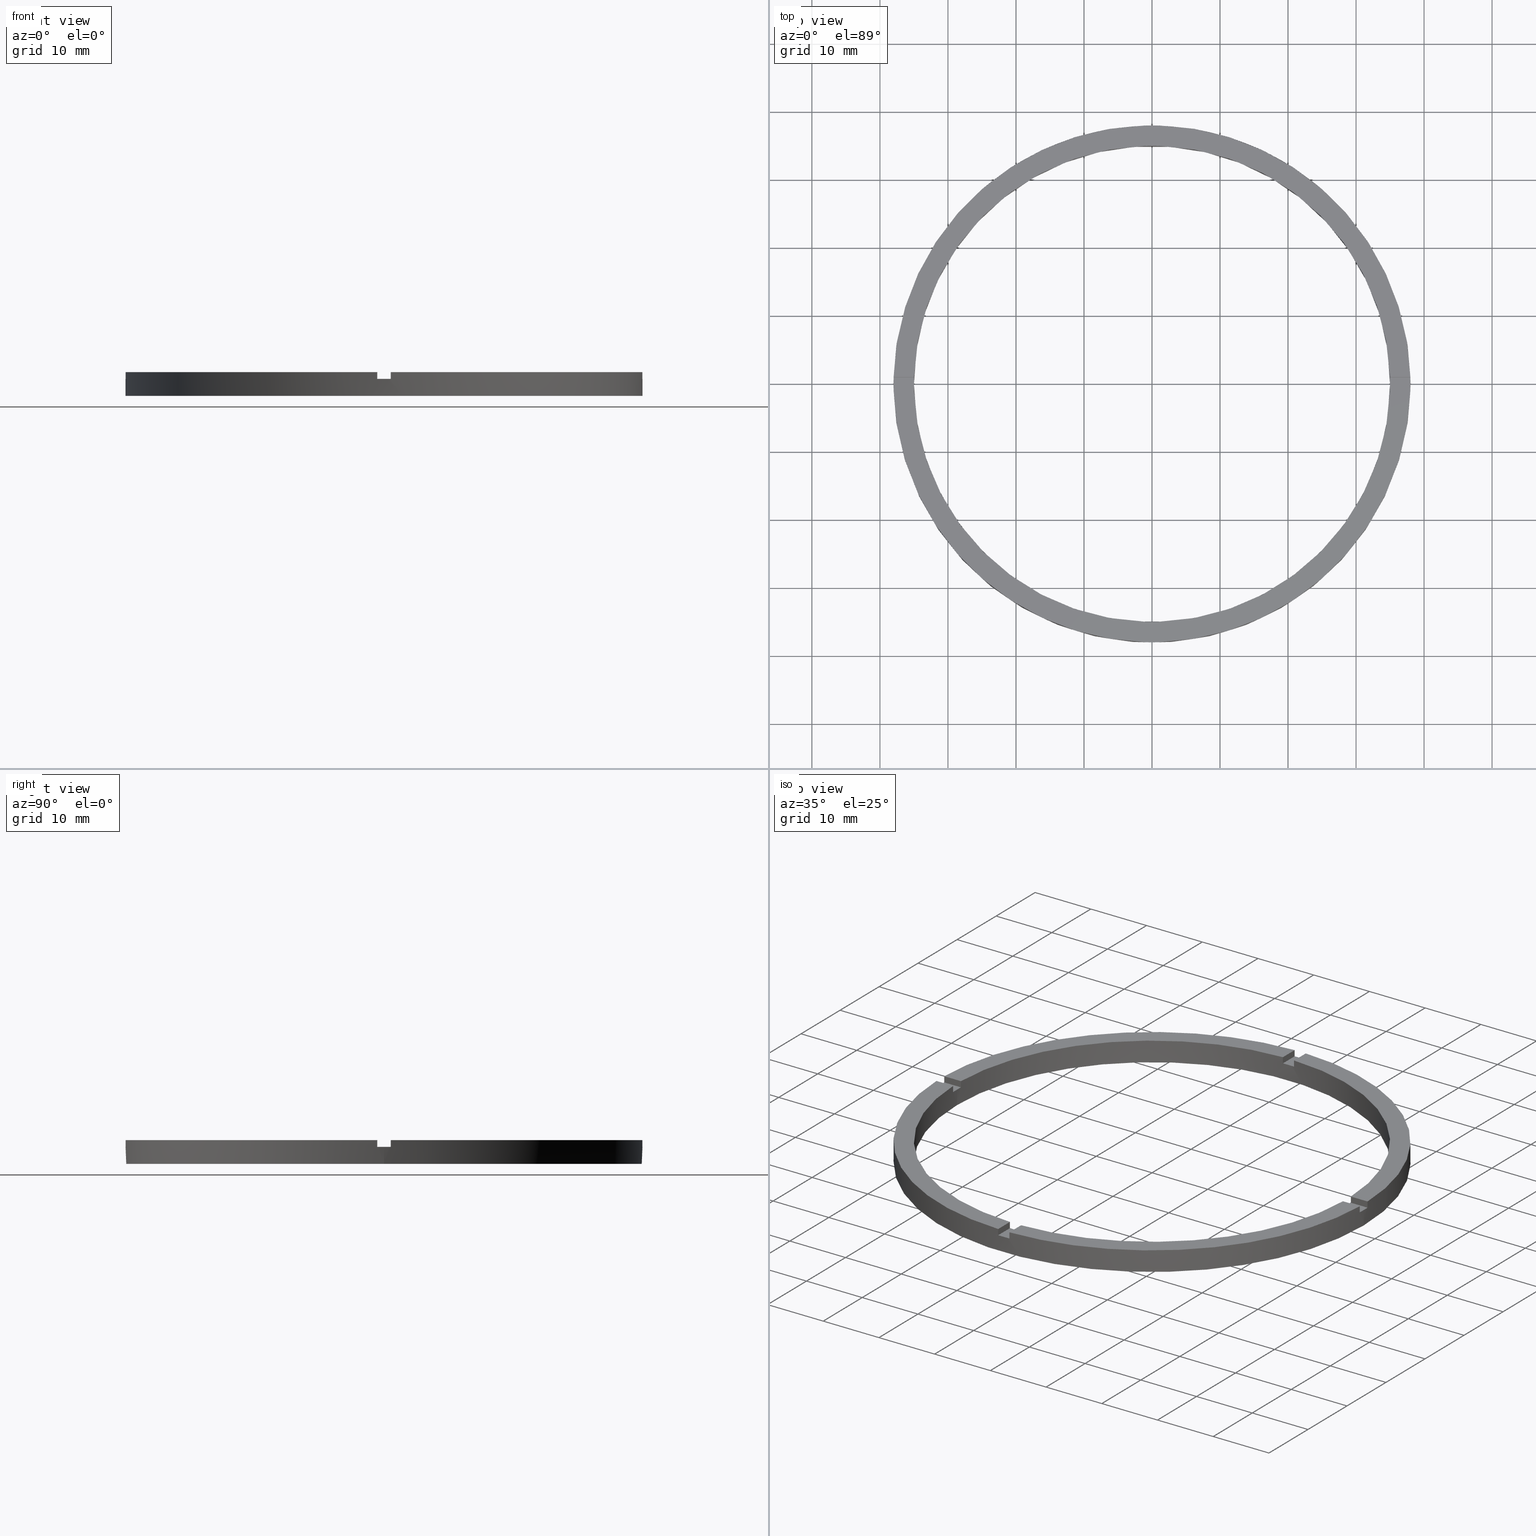
[diagram: canonical four-view strip — front | top / right | iso, engineering-drawing reading convention]
A machine part, canonical four-view strip (front | top / right | iso — engineering-drawing reading convention). The complete STEP part file that produces these views, byte-faithful:
ISO-10303-21;
HEADER;
FILE_DESCRIPTION (( 'STEP AP203' ),
    '1' );
FILE_NAME ('514156.step',
    '2024-12-26T02:42:58',
    ( 'MSI' ),
    ( '' ),
    'SwSTEP 2.0',
    'SolidWorks 2020',
    '' );
FILE_SCHEMA (( 'CONFIG_CONTROL_DESIGN' ));
ENDSEC;

DATA;
#1 = CARTESIAN_POINT ( 'NONE',  ( -35.00000000000000711, 0.000000000000000000, 3.500000000000000000 ) ) ;
#2 = EDGE_CURVE ( 'NONE', #739, #466, #202, .T. ) ;
#3 = APPROVAL ( #173, 'δָ��' ) ;
#4 = EDGE_CURVE ( 'NONE', #170, #750, #207, .T. ) ;
#5 = DIRECTION ( 'NONE',  ( 0.000000000000000000, 0.000000000000000000, 1.000000000000000000 ) ) ;
#6 = DIRECTION ( 'NONE',  ( 0.000000000000000000, -0.000000000000000000, 1.000000000000000000 ) ) ;
#7 = DIRECTION ( 'NONE',  ( -0.000000000000000000, 0.000000000000000000, 1.000000000000000000 ) ) ;
#8 = CARTESIAN_POINT ( 'NONE',  ( -28.00000000000018474, -1.000000000000025757, 3.500000000000000000 ) ) ;
#9 = DIRECTION ( 'NONE',  ( -0.000000000000000000, -0.000000000000000000, -1.000000000000000000 ) ) ;
#10 = EDGE_CURVE ( 'NONE', #500, #498, #454, .T. ) ;
#11 = EDGE_CURVE ( 'NONE', #749, #383, #189, .T. ) ;
#12 = DIRECTION ( 'NONE',  ( 1.000000000000000000, 6.505213034913025371E-17, 0.000000000000000000 ) ) ;
#13 = DIRECTION ( 'NONE',  ( 1.000000000000000000, 0.000000000000000000, 0.000000000000000000 ) ) ;
#14 = PLANE ( 'NONE',  #432 ) ;
#15 = LINE ( 'NONE', #352, #295 ) ;
#16 = ADVANCED_FACE ( 'NONE', ( #447 ), #345, .F. ) ;
#17 = CARTESIAN_POINT ( 'NONE',  ( 0.000000000000000000, 0.000000000000000000, 2.500000000000000000 ) ) ;
#18 = CARTESIAN_POINT ( 'NONE',  ( 37.98683982644514856, -1.000000000000157430, 3.500000000000000000 ) ) ;
#19 = DIRECTION ( 'NONE',  ( 0.000000000000000000, 0.000000000000000000, 1.000000000000000000 ) ) ;
#20 = AXIS2_PLACEMENT_3D ( 'NONE', #17, #77, #165 ) ;
#21 = EDGE_CURVE ( 'NONE', #500, #236, #706, .T. ) ;
#22 = SECURITY_CLASSIFICATION_LEVEL ( 'unclassified' ) ;
#23 = AXIS2_PLACEMENT_3D ( 'NONE', #301, #280, #551 ) ;
#24 = VECTOR ( 'NONE', #555, 1000.000000000000000 ) ;
#25 = LINE ( 'NONE', #98, #282 ) ;
#26 = EDGE_CURVE ( 'NONE', #92, #496, #721, .T. ) ;
#27 = VECTOR ( 'NONE', #450, 1000.000000000000000 ) ;
#28 = CARTESIAN_POINT ( 'NONE',  ( -34.98571136907180801, 0.9999999999999729106, 2.500000000000000000 ) ) ;
#29 = DIRECTION ( 'NONE',  ( -0.000000000000000000, -1.000000000000000000, -0.000000000000000000 ) ) ;
#30 = CC_DESIGN_PERSON_AND_ORGANIZATION_ASSIGNMENT ( #354, #685, ( #433 ) ) ;
#31 = EDGE_CURVE ( 'NONE', #134, #498, #700, .T. ) ;
#32 = AXIS2_PLACEMENT_3D ( 'NONE', #298, #184, #261 ) ;
#33 = DIRECTION ( 'NONE',  ( 0.000000000000000000, 0.000000000000000000, 1.000000000000000000 ) ) ;
#34 = CARTESIAN_POINT ( 'NONE',  ( 0.9999999999999746869, 37.98683982644515567, 3.500000000000000000 ) ) ;
#35 = CARTESIAN_POINT ( 'NONE',  ( -37.98683982644515567, -1.000000000000027756, 3.500000000000000000 ) ) ;
#36 = VECTOR ( 'NONE', #315, 1000.000000000000000 ) ;
#37 = PRODUCT_DEFINITION_SHAPE ( 'NONE', 'NONE',  #367 ) ;
#38 = DIRECTION ( 'NONE',  ( -0.000000000000000000, -0.000000000000000000, -1.000000000000000000 ) ) ;
#39 = EDGE_CURVE ( 'NONE', #402, #496, #213, .T. ) ;
#40 = DIRECTION ( 'NONE',  ( -1.000000000000000000, -1.951563910473907735E-16, 0.000000000000000000 ) ) ;
#41 = CIRCLE ( 'NONE', #400, 38.00000000000000000 ) ;
#42 = CARTESIAN_POINT ( 'NONE',  ( -1.000000000000159872, -37.98683982644514856, 3.500000000000000000 ) ) ;
#43 = FACE_OUTER_BOUND ( 'NONE', #231, .T. ) ;
#44 = DIRECTION ( 'NONE',  ( 0.000000000000000000, 0.000000000000000000, 1.000000000000000000 ) ) ;
#45 = PLANE ( 'NONE',  #711 ) ;
#46 = CARTESIAN_POINT ( 'NONE',  ( 0.000000000000000000, 0.000000000000000000, 2.500000000000000000 ) ) ;
#47 = CIRCLE ( 'NONE', #238, 35.00000000000000711 ) ;
#48 = FACE_OUTER_BOUND ( 'NONE', #227, .T. ) ;
#49 = DIRECTION ( 'NONE',  ( 1.000000000000000000, 1.951563910473907735E-16, 0.000000000000000000 ) ) ;
#50 = AXIS2_PLACEMENT_3D ( 'NONE', #73, #138, #755 ) ;
#51 = CYLINDRICAL_SURFACE ( 'NONE', #380, 35.00000000000000711 ) ;
#52 = EDGE_CURVE ( 'NONE', #423, #750, #185, .T. ) ;
#53 = CYLINDRICAL_SURFACE ( 'NONE', #528, 38.00000000000000000 ) ;
#54 = CARTESIAN_POINT ( 'NONE',  ( 0.000000000000000000, 0.000000000000000000, 3.500000000000000000 ) ) ;
#55 = CARTESIAN_POINT ( 'NONE',  ( 34.98571136907180090, -1.000000000000157652, 2.500000000000000000 ) ) ;
#56 = CC_DESIGN_PERSON_AND_ORGANIZATION_ASSIGNMENT ( #599, #239, ( #367 ) ) ;
#57 = FACE_OUTER_BOUND ( 'NONE', #111, .T. ) ;
#58 = DIRECTION ( 'NONE',  ( 0.000000000000000000, 0.000000000000000000, 1.000000000000000000 ) ) ;
#59 = CIRCLE ( 'NONE', #316, 35.00000000000000711 ) ;
#60 = ADVANCED_FACE ( 'NONE', ( #708 ), #489, .F. ) ;
#61 = LINE ( 'NONE', #431, #71 ) ;
#62 = CARTESIAN_POINT ( 'NONE',  ( -38.00000000000000000, 0.000000000000000000, 2.500000000000000000 ) ) ;
#63 = DIRECTION ( 'NONE',  ( 1.000000000000000000, 0.000000000000000000, -0.000000000000000000 ) ) ;
#64 = FACE_BOUND ( 'NONE', #188, .T. ) ;
#65 = CIRCLE ( 'NONE', #536, 35.00000000000000711 ) ;
#66 = VECTOR ( 'NONE', #29, 1000.000000000000000 ) ;
#67 = LOCAL_TIME ( 10, 42, 58.00000000000000000, #338 ) ;
#68 = EDGE_CURVE ( 'NONE', #141, #713, #451, .T. ) ;
#69 = AXIS2_PLACEMENT_3D ( 'NONE', #519, #371, #576 ) ;
#70 = PERSON_AND_ORGANIZATION ( #155, #97 ) ;
#71 = VECTOR ( 'NONE', #128, 1000.000000000000000 ) ;
#72 = APPROVAL_PERSON_ORGANIZATION ( #604, #3, #172 ) ;
#73 = CARTESIAN_POINT ( 'NONE',  ( -1.000000000000025313, 27.99999999999999645, 2.500000000000000000 ) ) ;
#74 = COORDINATED_UNIVERSAL_TIME_OFFSET ( 8, 0, .AHEAD. ) ;
#75 = APPROVAL_DATE_TIME ( #591, #3 ) ;
#76 = FACE_OUTER_BOUND ( 'NONE', #119, .T. ) ;
#77 = DIRECTION ( 'NONE',  ( 0.000000000000000000, -0.000000000000000000, 1.000000000000000000 ) ) ;
#78 = DIRECTION ( 'NONE',  ( -1.000000000000000000, -6.505213034913025371E-17, -0.000000000000000000 ) ) ;
#79 = ORIENTED_EDGE ( 'NONE', *, *, #635, .F. ) ;
#80 = DATE_AND_TIME ( #613, #93 ) ;
#81 = VECTOR ( 'NONE', #78, 1000.000000000000000 ) ;
#82 = EDGE_LOOP ( 'NONE', ( #505, #216, #88, #647 ) ) ;
#83 = APPROVAL_PERSON_ORGANIZATION ( #70, #186, #448 ) ;
#84 = DIRECTION ( 'NONE',  ( -1.000000000000000000, -6.505213034913025371E-17, -0.000000000000000000 ) ) ;
#85 = VERTEX_POINT ( 'NONE', #504 ) ;
#86 = CALENDAR_DATE ( 2024, 26, 12 ) ;
#87 = AXIS2_PLACEMENT_3D ( 'NONE', #293, #413, #770 ) ;
#88 = ORIENTED_EDGE ( 'NONE', *, *, #125, .F. ) ;
#89 = COORDINATED_UNIVERSAL_TIME_OFFSET ( 8, 0, .AHEAD. ) ;
#90 = CIRCLE ( 'NONE', #563, 38.00000000000000000 ) ;
#91 = DATE_TIME_ROLE ( 'classification_date' ) ;
#92 = VERTEX_POINT ( 'NONE', #672 ) ;
#93 = LOCAL_TIME ( 10, 42, 58.00000000000000000, #89 ) ;
#94 = VECTOR ( 'NONE', #657, 1000.000000000000000 ) ;
#95 = ADVANCED_FACE ( 'NONE', ( #718 ), #545, .T. ) ;
#96 = ORIENTED_EDGE ( 'NONE', *, *, #137, .T. ) ;
#97 = ORGANIZATION ( 'δָ��', 'δָ��', '' ) ;
#98 = CARTESIAN_POINT ( 'NONE',  ( -37.98683982644515567, 0.9999999999999722444, 3.500000000000000000 ) ) ;
#99 = FACE_OUTER_BOUND ( 'NONE', #751, .T. ) ;
#100 = ORIENTED_EDGE ( 'NONE', *, *, #175, .F. ) ;
#101 = PERSON_AND_ORGANIZATION ( #155, #97 ) ;
#102 = FACE_OUTER_BOUND ( 'NONE', #628, .T. ) ;
#103 = CARTESIAN_POINT ( 'NONE',  ( -1.000000000000159872, -37.98683982644514856, 3.500000000000000000 ) ) ;
#104 = PLANE ( 'NONE',  #23 ) ;
#105 = ORIENTED_EDGE ( 'NONE', *, *, #4, .T. ) ;
#106 = ORIENTED_EDGE ( 'NONE', *, *, #422, .T. ) ;
#107 = CARTESIAN_POINT ( 'NONE',  ( -28.00000000000018474, -1.000000000000025757, 2.500000000000000000 ) ) ;
#108 = ORIENTED_EDGE ( 'NONE', *, *, #26, .F. ) ;
#109 = CARTESIAN_POINT ( 'NONE',  ( 27.99999999999998934, -1.000000000000158096, 3.500000000000000000 ) ) ;
#110 = ORIENTED_EDGE ( 'NONE', *, *, #199, .T. ) ;
#111 = EDGE_LOOP ( 'NONE', ( #730, #662, #705, #593, #670, #100, #481, #143, #409, #757, #453, #195 ) ) ;
#112 = DIRECTION ( 'NONE',  ( 0.000000000000000000, 0.000000000000000000, 1.000000000000000000 ) ) ;
#113 = VECTOR ( 'NONE', #132, 1000.000000000000000 ) ;
#114 = ORIENTED_EDGE ( 'NONE', *, *, #162, .F. ) ;
#115 = CARTESIAN_POINT ( 'NONE',  ( 0.9999999999998402389, -37.98683982644516277, 2.500000000000000000 ) ) ;
#116 = CARTESIAN_POINT ( 'NONE',  ( 0.000000000000000000, 0.000000000000000000, 2.500000000000000000 ) ) ;
#117 = PRODUCT_DEFINITION_FORMATION_WITH_SPECIFIED_SOURCE ( '�κ�', '', #437, .NOT_KNOWN. ) ;
#118 = ORIENTED_EDGE ( 'NONE', *, *, #164, .T. ) ;
#119 = EDGE_LOOP ( 'NONE', ( #650, #643, #223, #259, #258, #135 ) ) ;
#120 = CARTESIAN_POINT ( 'NONE',  ( -28.00000000000018474, 0.9999999999999742428, 2.500000000000000000 ) ) ;
#121 = EDGE_LOOP ( 'NONE', ( #255, #625, #105, #153 ) ) ;
#122 = VERTEX_POINT ( 'NONE', #154 ) ;
#123 = DIRECTION ( 'NONE',  ( 0.000000000000000000, 0.000000000000000000, 1.000000000000000000 ) ) ;
#124 = ORIENTED_EDGE ( 'NONE', *, *, #137, .F. ) ;
#125 = EDGE_CURVE ( 'NONE', #398, #379, #458, .T. ) ;
#126 = ORIENTED_EDGE ( 'NONE', *, *, #2, .T. ) ;
#127 = DIRECTION ( 'NONE',  ( 1.000000000000000000, 0.000000000000000000, 0.000000000000000000 ) ) ;
#128 = DIRECTION ( 'NONE',  ( -0.000000000000000000, -0.000000000000000000, -1.000000000000000000 ) ) ;
#129 = AXIS2_PLACEMENT_3D ( 'NONE', #661, #585, #703 ) ;
#130 = EDGE_LOOP ( 'NONE', ( #233, #630, #156, #626 ) ) ;
#131 = CARTESIAN_POINT ( 'NONE',  ( -34.98571136907180801, -1.000000000000027089, 3.500000000000000000 ) ) ;
#132 = DIRECTION ( 'NONE',  ( 0.000000000000000000, 1.000000000000000000, 0.000000000000000000 ) ) ;
#133 = VERTEX_POINT ( 'NONE', #733 ) ;
#134 = VERTEX_POINT ( 'NONE', #55 ) ;
#135 = ORIENTED_EDGE ( 'NONE', *, *, #222, .T. ) ;
#136 = CARTESIAN_POINT ( 'NONE',  ( 0.000000000000000000, 0.000000000000000000, 3.500000000000000000 ) ) ;
#137 = EDGE_CURVE ( 'NONE', #760, #691, #441, .T. ) ;
#138 = DIRECTION ( 'NONE',  ( -1.000000000000000000, 0.000000000000000000, 0.000000000000000000 ) ) ;
#139 = ORIENTED_EDGE ( 'NONE', *, *, #314, .T. ) ;
#140 = DIRECTION ( 'NONE',  ( 0.000000000000000000, 0.000000000000000000, 1.000000000000000000 ) ) ;
#141 = VERTEX_POINT ( 'NONE', #210 ) ;
#142 = ORIENTED_EDGE ( 'NONE', *, *, #699, .T. ) ;
#143 = ORIENTED_EDGE ( 'NONE', *, *, #416, .F. ) ;
#144 = DIRECTION ( 'NONE',  ( 0.000000000000000000, 0.000000000000000000, 1.000000000000000000 ) ) ;
#145 = ORIENTED_EDGE ( 'NONE', *, *, #294, .T. ) ;
#146 = CARTESIAN_POINT ( 'NONE',  ( 0.000000000000000000, 0.000000000000000000, 0.000000000000000000 ) ) ;
#147 = ORIENTED_EDGE ( 'NONE', *, *, #675, .F. ) ;
#148 = CARTESIAN_POINT ( 'NONE',  ( 0.9999999999999746869, 34.98571136907180801, 3.500000000000000000 ) ) ;
#149 = EDGE_LOOP ( 'NONE', ( #737, #735, #503, #150 ) ) ;
#150 = ORIENTED_EDGE ( 'NONE', *, *, #324, .F. ) ;
#151 = DIRECTION ( 'NONE',  ( 0.000000000000000000, 0.000000000000000000, -1.000000000000000000 ) ) ;
#152 = ADVANCED_FACE ( 'NONE', ( #194 ), #158, .T. ) ;
#153 = ORIENTED_EDGE ( 'NONE', *, *, #52, .F. ) ;
#154 = CARTESIAN_POINT ( 'NONE',  ( -1.000000000000025313, 34.98571136907180801, 3.500000000000000000 ) ) ;
#155 = PERSON ( 'δָ��', 'δָ��', 'δָ��', ('δָ��'), ('δָ��'), ('δָ��') ) ;
#156 = ORIENTED_EDGE ( 'NONE', *, *, #776, .F. ) ;
#157 = ORIENTED_EDGE ( 'NONE', *, *, #393, .F. ) ;
#158 = PLANE ( 'NONE',  #20 ) ;
#159 = VERTEX_POINT ( 'NONE', #544 ) ;
#160 = ADVANCED_FACE ( 'NONE', ( #457 ), #208, .T. ) ;
#161 = AXIS2_PLACEMENT_3D ( 'NONE', #743, #667, #63 ) ;
#162 = EDGE_CURVE ( 'NONE', #445, #159, #203, .T. ) ;
#163 = CC_DESIGN_APPROVAL ( #186, ( #117 ) ) ;
#164 = EDGE_CURVE ( 'NONE', #134, #641, #712, .T. ) ;
#165 = DIRECTION ( 'NONE',  ( 1.000000000000000000, 0.000000000000000000, -0.000000000000000000 ) ) ;
#166 = DIRECTION ( 'NONE',  ( 0.000000000000000000, 0.000000000000000000, 1.000000000000000000 ) ) ;
#167 = CARTESIAN_POINT ( 'NONE',  ( -37.98683982644515567, -1.000000000000027756, 2.500000000000000000 ) ) ;
#168 = ORIENTED_EDGE ( 'NONE', *, *, #699, .F. ) ;
#169 = DIRECTION ( 'NONE',  ( 1.000000000000000000, 0.000000000000000000, 0.000000000000000000 ) ) ;
#170 = VERTEX_POINT ( 'NONE', #541 ) ;
#171 = VERTEX_POINT ( 'NONE', #508 ) ;
#172 = APPROVAL_ROLE ( '' ) ;
#173 = APPROVAL_STATUS ( 'not_yet_approved' ) ;
#174 = DIRECTION ( 'NONE',  ( -0.000000000000000000, -0.000000000000000000, -1.000000000000000000 ) ) ;
#175 = EDGE_CURVE ( 'NONE', #423, #610, #459, .T. ) ;
#176 = DIRECTION ( 'NONE',  ( 1.000000000000000000, 0.000000000000000000, -0.000000000000000000 ) ) ;
#177 = CARTESIAN_POINT ( 'NONE',  ( -1.000000000000025313, 27.99999999999999645, 3.500000000000000000 ) ) ;
#178 = AXIS2_PLACEMENT_3D ( 'NONE', #277, #179, #478 ) ;
#179 = DIRECTION ( 'NONE',  ( 0.000000000000000000, 0.000000000000000000, 1.000000000000000000 ) ) ;
#180 = DIRECTION ( 'NONE',  ( 1.000000000000000000, 0.000000000000000000, 0.000000000000000000 ) ) ;
#181 = VECTOR ( 'NONE', #687, 1000.000000000000000 ) ;
#182 = CARTESIAN_POINT ( 'NONE',  ( 0.000000000000000000, 0.000000000000000000, 2.500000000000000000 ) ) ;
#183 = LINE ( 'NONE', #547, #221 ) ;
#184 = DIRECTION ( 'NONE',  ( 0.000000000000000000, 0.000000000000000000, 1.000000000000000000 ) ) ;
#185 = LINE ( 'NONE', #103, #181 ) ;
#186 = APPROVAL ( #660, 'δָ��' ) ;
#187 = AXIS2_PLACEMENT_3D ( 'NONE', #357, #527, #180 ) ;
#188 = EDGE_LOOP ( 'NONE', ( #142, #96 ) ) ;
#189 = CIRCLE ( 'NONE', #87, 35.00000000000000711 ) ;
#190 = CARTESIAN_POINT ( 'NONE',  ( 0.9999999999999746869, 27.99999999999999645, 2.500000000000000000 ) ) ;
#191 = VERTEX_POINT ( 'NONE', #313 ) ;
#192 = DIRECTION ( 'NONE',  ( -0.000000000000000000, -0.000000000000000000, -1.000000000000000000 ) ) ;
#193 = CARTESIAN_POINT ( 'NONE',  ( 0.000000000000000000, 0.000000000000000000, 3.500000000000000000 ) ) ;
#194 = FACE_OUTER_BOUND ( 'NONE', #365, .T. ) ;
#195 = ORIENTED_EDGE ( 'NONE', *, *, #465, .T. ) ;
#196 = DIRECTION ( 'NONE',  ( 0.000000000000000000, 0.000000000000000000, 1.000000000000000000 ) ) ;
#197 = ORIENTED_EDGE ( 'NONE', *, *, #422, .F. ) ;
#198 = DIRECTION ( 'NONE',  ( 1.000000000000000000, 0.000000000000000000, 0.000000000000000000 ) ) ;
#199 = EDGE_CURVE ( 'NONE', #665, #476, #728, .T. ) ;
#200 = DIRECTION ( 'NONE',  ( -0.000000000000000000, -0.000000000000000000, -1.000000000000000000 ) ) ;
#201 = VERTEX_POINT ( 'NONE', #740 ) ;
#202 = CIRCLE ( 'NONE', #279, 35.00000000000000711 ) ;
#203 = CIRCLE ( 'NONE', #633, 35.00000000000000711 ) ;
#204 = CARTESIAN_POINT ( 'NONE',  ( 0.9999999999998397948, -34.98571136907181511, 2.500000000000000000 ) ) ;
#205 = VECTOR ( 'NONE', #614, 1000.000000000000000 ) ;
#206 = CARTESIAN_POINT ( 'NONE',  ( 0.000000000000000000, 0.000000000000000000, 2.500000000000000000 ) ) ;
#207 = LINE ( 'NONE', #310, #697 ) ;
#208 = CYLINDRICAL_SURFACE ( 'NONE', #666, 38.00000000000000000 ) ;
#209 = LINE ( 'NONE', #120, #460 ) ;
#210 = CARTESIAN_POINT ( 'NONE',  ( 0.9999999999998402389, -37.98683982644516277, 3.500000000000000000 ) ) ;
#211 = CARTESIAN_POINT ( 'NONE',  ( -1.000000000000159872, -37.98683982644514856, 2.500000000000000000 ) ) ;
#212 = EDGE_CURVE ( 'NONE', #739, #606, #209, .T. ) ;
#213 = LINE ( 'NONE', #418, #701 ) ;
#214 = CARTESIAN_POINT ( 'NONE',  ( -1.000000000000025313, 34.98571136907180801, 2.500000000000000000 ) ) ;
#215 = VECTOR ( 'NONE', #12, 1000.000000000000000 ) ;
#216 = ORIENTED_EDGE ( 'NONE', *, *, #401, .F. ) ;
#217 = CARTESIAN_POINT ( 'NONE',  ( 27.99999999999998934, 0.9999999999998419042, 2.500000000000000000 ) ) ;
#218 = ORIENTED_EDGE ( 'NONE', *, *, #39, .T. ) ;
#219 = ORIENTED_EDGE ( 'NONE', *, *, #490, .T. ) ;
#220 = CARTESIAN_POINT ( 'NONE',  ( -34.98571136907180801, -1.000000000000027089, 3.500000000000000000 ) ) ;
#221 = VECTOR ( 'NONE', #537, 1000.000000000000000 ) ;
#222 = EDGE_CURVE ( 'NONE', #134, #201, #722, .T. ) ;
#223 = ORIENTED_EDGE ( 'NONE', *, *, #781, .T. ) ;
#224 = EDGE_LOOP ( 'NONE', ( #766, #638, #649, #767 ) ) ;
#225 = CARTESIAN_POINT ( 'NONE',  ( 0.9999999999999746869, 34.98571136907180801, 2.500000000000000000 ) ) ;
#226 = ORIENTED_EDGE ( 'NONE', *, *, #520, .F. ) ;
#227 = EDGE_LOOP ( 'NONE', ( #118, #598, #168, #754, #355, #602, #472, #654, #353, #244, #375, #742 ) ) ;
#228 = DIRECTION ( 'NONE',  ( 0.000000000000000000, 0.000000000000000000, 1.000000000000000000 ) ) ;
#229 = VERTEX_POINT ( 'NONE', #62 ) ;
#230 = ORIENTED_EDGE ( 'NONE', *, *, #68, .T. ) ;
#231 = EDGE_LOOP ( 'NONE', ( #384, #219, #762, #745, #491, #695, #147, #443, #512, #126, #240, #124 ) ) ;
#232 = ADVANCED_FACE ( 'NONE', ( #693 ), #642, .F. ) ;
#233 = ORIENTED_EDGE ( 'NONE', *, *, #125, .T. ) ;
#234 = EDGE_CURVE ( 'NONE', #229, #746, #462, .T. ) ;
#235 = VERTEX_POINT ( 'NONE', #525 ) ;
#236 = VERTEX_POINT ( 'NONE', #204 ) ;
#237 = EDGE_CURVE ( 'NONE', #201, #713, #183, .T. ) ;
#238 = AXIS2_PLACEMENT_3D ( 'NONE', #553, #321, #278 ) ;
#239 = PERSON_AND_ORGANIZATION_ROLE ( 'creator' ) ;
#240 = ORIENTED_EDGE ( 'NONE', *, *, #619, .T. ) ;
#241 = VERTEX_POINT ( 'NONE', #270 ) ;
#242 = CARTESIAN_POINT ( 'NONE',  ( -38.00000000000000000, 0.000000000000000000, 3.500000000000000000 ) ) ;
#243 = ORIENTED_EDGE ( 'NONE', *, *, #560, .F. ) ;
#244 = ORIENTED_EDGE ( 'NONE', *, *, #21, .F. ) ;
#245 = ORIENTED_EDGE ( 'NONE', *, *, #477, .F. ) ;
#246 = ORIENTED_EDGE ( 'NONE', *, *, #392, .T. ) ;
#247 = DIRECTION ( 'NONE',  ( 1.000000000000000000, -0.000000000000000000, 0.000000000000000000 ) ) ;
#248 = ORIENTED_EDGE ( 'NONE', *, *, #675, .T. ) ;
#249 = ORIENTED_EDGE ( 'NONE', *, *, #237, .F. ) ;
#250 = DIRECTION ( 'NONE',  ( 0.000000000000000000, 0.000000000000000000, 1.000000000000000000 ) ) ;
#251 = CARTESIAN_POINT ( 'NONE',  ( -34.98571136907180801, -1.000000000000027089, 2.500000000000000000 ) ) ;
#252 = ORIENTED_EDGE ( 'NONE', *, *, #324, .T. ) ;
#253 = ORIENTED_EDGE ( 'NONE', *, *, #274, .T. ) ;
#254 = ORIENTED_EDGE ( 'NONE', *, *, #11, .F. ) ;
#255 = ORIENTED_EDGE ( 'NONE', *, *, #392, .F. ) ;
#256 = DIRECTION ( 'NONE',  ( 0.000000000000000000, 0.000000000000000000, 1.000000000000000000 ) ) ;
#257 = CARTESIAN_POINT ( 'NONE',  ( -28.00000000000018474, 0.9999999999999742428, 3.500000000000000000 ) ) ;
#258 = ORIENTED_EDGE ( 'NONE', *, *, #164, .F. ) ;
#259 = ORIENTED_EDGE ( 'NONE', *, *, #490, .F. ) ;
#260 = CARTESIAN_POINT ( 'NONE',  ( 0.000000000000000000, 0.000000000000000000, 3.500000000000000000 ) ) ;
#261 = DIRECTION ( 'NONE',  ( 1.000000000000000000, 0.000000000000000000, 0.000000000000000000 ) ) ;
#262 = DIRECTION ( 'NONE',  ( -0.000000000000000000, -0.000000000000000000, -1.000000000000000000 ) ) ;
#263 = AXIS2_PLACEMENT_3D ( 'NONE', #136, #112, #13 ) ;
#264 = EDGE_CURVE ( 'NONE', #621, #191, #475, .T. ) ;
#265 = DIRECTION ( 'NONE',  ( 1.000000000000000000, 0.000000000000000000, -0.000000000000000000 ) ) ;
#266 = CARTESIAN_POINT ( 'NONE',  ( -1.000000000000025313, 34.98571136907180801, 3.500000000000000000 ) ) ;
#267 = DIRECTION ( 'NONE',  ( 1.000000000000000000, 0.000000000000000000, 0.000000000000000000 ) ) ;
#268 = CARTESIAN_POINT ( 'NONE',  ( 0.9999999999999746869, 37.98683982644515567, 2.500000000000000000 ) ) ;
#269 = DIRECTION ( 'NONE',  ( -1.000000000000000000, 0.000000000000000000, 0.000000000000000000 ) ) ;
#270 = CARTESIAN_POINT ( 'NONE',  ( 34.98571136907181511, 0.9999999999998423483, 2.500000000000000000 ) ) ;
#271 = DIRECTION ( 'NONE',  ( 1.000000000000000000, 1.951563910473907735E-16, -0.000000000000000000 ) ) ;
#272 = AXIS2_PLACEMENT_3D ( 'NONE', #430, #561, #305 ) ;
#273 = DIRECTION ( 'NONE',  ( -1.951563910473907735E-16, 1.000000000000000000, 0.000000000000000000 ) ) ;
#274 = EDGE_CURVE ( 'NONE', #92, #235, #729, .T. ) ;
#275 = AXIS2_PLACEMENT_3D ( 'NONE', #308, #523, #493 ) ;
#276 = DIRECTION ( 'NONE',  ( 1.000000000000000000, 0.000000000000000000, 0.000000000000000000 ) ) ;
#277 = CARTESIAN_POINT ( 'NONE',  ( 0.000000000000000000, 0.000000000000000000, 0.000000000000000000 ) ) ;
#278 = DIRECTION ( 'NONE',  ( 1.000000000000000000, 0.000000000000000000, 0.000000000000000000 ) ) ;
#279 = AXIS2_PLACEMENT_3D ( 'NONE', #182, #659, #582 ) ;
#280 = DIRECTION ( 'NONE',  ( -1.000000000000000000, -1.301042606982605074E-16, 0.000000000000000000 ) ) ;
#281 = EDGE_CURVE ( 'NONE', #749, #402, #731, .T. ) ;
#282 = VECTOR ( 'NONE', #228, 1000.000000000000000 ) ;
#283 = CARTESIAN_POINT ( 'NONE',  ( 0.000000000000000000, 0.000000000000000000, 2.500000000000000000 ) ) ;
#284 = AXIS2_PLACEMENT_3D ( 'NONE', #656, #256, #688 ) ;
#285 = ADVANCED_BREP_SHAPE_REPRESENTATION ( '514156', ( #473, #284 ), #637 ) ;
#286 = FACE_OUTER_BOUND ( 'NONE', #149, .T. ) ;
#287 = DATE_TIME_ROLE ( 'creation_date' ) ;
#288 = VECTOR ( 'NONE', #396, 1000.000000000000000 ) ;
#289 = CARTESIAN_POINT ( 'NONE',  ( 0.000000000000000000, 0.000000000000000000, 3.500000000000000000 ) ) ;
#290 = AXIS2_PLACEMENT_3D ( 'NONE', #190, #247, #151 ) ;
#291 = DIRECTION ( 'NONE',  ( -0.000000000000000000, -0.000000000000000000, -1.000000000000000000 ) ) ;
#292 = PRODUCT_RELATED_PRODUCT_CATEGORY ( 'detail', '', ( #437 ) ) ;
#293 = CARTESIAN_POINT ( 'NONE',  ( 0.000000000000000000, 0.000000000000000000, 2.500000000000000000 ) ) ;
#294 = EDGE_CURVE ( 'NONE', #92, #445, #15, .T. ) ;
#295 = VECTOR ( 'NONE', #84, 1000.000000000000000 ) ;
#296 = CARTESIAN_POINT ( 'NONE',  ( -35.00000000000000711, 0.000000000000000000, 2.500000000000000000 ) ) ;
#297 = DIRECTION ( 'NONE',  ( -0.000000000000000000, -0.000000000000000000, -1.000000000000000000 ) ) ;
#298 = CARTESIAN_POINT ( 'NONE',  ( 0.000000000000000000, 0.000000000000000000, 3.500000000000000000 ) ) ;
#299 = EDGE_CURVE ( 'NONE', #641, #760, #546, .T. ) ;
#300 = AXIS2_PLACEMENT_3D ( 'NONE', #289, #303, #176 ) ;
#301 = CARTESIAN_POINT ( 'NONE',  ( -1.000000000000161204, -28.00000000000017764, 2.500000000000000000 ) ) ;
#302 = CIRCLE ( 'NONE', #510, 38.00000000000000000 ) ;
#303 = DIRECTION ( 'NONE',  ( 0.000000000000000000, 0.000000000000000000, 1.000000000000000000 ) ) ;
#304 = UNCERTAINTY_MEASURE_WITH_UNIT (LENGTH_MEASURE( 1.000000000000000082E-05 ), #403, 'distance_accuracy_value', 'NONE');
#305 = DIRECTION ( 'NONE',  ( 1.000000000000000000, 0.000000000000000000, 0.000000000000000000 ) ) ;
#306 = VECTOR ( 'NONE', #524, 1000.000000000000000 ) ;
#307 = DIRECTION ( 'NONE',  ( 0.000000000000000000, 0.000000000000000000, 1.000000000000000000 ) ) ;
#308 = CARTESIAN_POINT ( 'NONE',  ( 0.000000000000000000, 0.000000000000000000, 2.500000000000000000 ) ) ;
#309 = LINE ( 'NONE', #492, #327 ) ;
#310 = CARTESIAN_POINT ( 'NONE',  ( -1.000000000000161204, -28.00000000000017764, 3.500000000000000000 ) ) ;
#311 = LINE ( 'NONE', #679, #550 ) ;
#312 = CARTESIAN_POINT ( 'NONE',  ( 27.99999999999998934, 0.9999999999998419042, 2.500000000000000000 ) ) ;
#313 = CARTESIAN_POINT ( 'NONE',  ( 38.00000000000000000, 4.653657836759941941E-15, 0.000000000000000000 ) ) ;
#314 = EDGE_CURVE ( 'NONE', #229, #408, #302, .T. ) ;
#315 = DIRECTION ( 'NONE',  ( -1.301042606982605074E-16, 1.000000000000000000, -0.000000000000000000 ) ) ;
#316 = AXIS2_PLACEMENT_3D ( 'NONE', #518, #719, #529 ) ;
#317 = CARTESIAN_POINT ( 'NONE',  ( 0.9999999999999746869, 27.99999999999999645, 2.500000000000000000 ) ) ;
#318 = CYLINDRICAL_SURFACE ( 'NONE', #532, 35.00000000000000711 ) ;
#319 = DIRECTION ( 'NONE',  ( 0.000000000000000000, 0.000000000000000000, 1.000000000000000000 ) ) ;
#320 = EDGE_CURVE ( 'NONE', #379, #412, #531, .T. ) ;
#321 = DIRECTION ( 'NONE',  ( 0.000000000000000000, 0.000000000000000000, 1.000000000000000000 ) ) ;
#322 = CC_DESIGN_DATE_AND_TIME_ASSIGNMENT ( #587, #91, ( #433 ) ) ;
#323 = LINE ( 'NONE', #328, #306 ) ;
#324 = EDGE_CURVE ( 'NONE', #606, #171, #25, .T. ) ;
#325 = ADVANCED_FACE ( 'NONE', ( #286 ), #517, .F. ) ;
#326 = LINE ( 'NONE', #35, #329 ) ;
#327 = VECTOR ( 'NONE', #539, 1000.000000000000000 ) ;
#328 = CARTESIAN_POINT ( 'NONE',  ( 0.9999999999998389066, -28.00000000000017764, 2.500000000000000000 ) ) ;
#329 = VECTOR ( 'NONE', #404, 1000.000000000000000 ) ;
#330 = CIRCLE ( 'NONE', #187, 38.00000000000000000 ) ;
#331 = LINE ( 'NONE', #428, #571 ) ;
#332 = ADVANCED_FACE ( 'NONE', ( #535 ), #14, .T. ) ;
#333 = EDGE_CURVE ( 'NONE', #606, #229, #41, .T. ) ;
#334 = VECTOR ( 'NONE', #479, 1000.000000000000000 ) ;
#335 = EDGE_CURVE ( 'NONE', #133, #170, #311, .T. ) ;
#336 = LINE ( 'NONE', #349, #113 ) ;
#337 = VECTOR ( 'NONE', #40, 1000.000000000000000 ) ;
#338 = COORDINATED_UNIVERSAL_TIME_OFFSET ( 8, 0, .AHEAD. ) ;
#339 = ADVANCED_FACE ( 'NONE', ( #554 ), #624, .F. ) ;
#340 = COORDINATED_UNIVERSAL_TIME_OFFSET ( 8, 0, .AHEAD. ) ;
#341 = CIRCLE ( 'NONE', #32, 35.00000000000000711 ) ;
#342 = DATE_AND_TIME ( #363, #67 ) ;
#343 = LINE ( 'NONE', #109, #334 ) ;
#344 = CALENDAR_DATE ( 2024, 26, 12 ) ;
#345 = PLANE ( 'NONE',  #542 ) ;
#346 = VECTOR ( 'NONE', #140, 1000.000000000000000 ) ;
#347 = DESIGN_CONTEXT ( 'detailed design', #681, 'design' ) ;
#348 = LOCAL_TIME ( 10, 42, 58.00000000000000000, #340 ) ;
#349 = CARTESIAN_POINT ( 'NONE',  ( 0.9999999999999746869, 27.99999999999999645, 3.500000000000000000 ) ) ;
#350 = DATE_AND_TIME ( #86, #348 ) ;
#351 = CIRCLE ( 'NONE', #702, 38.00000000000000000 ) ;
#352 = CARTESIAN_POINT ( 'NONE',  ( 27.99999999999998934, 0.9999999999998419042, 3.500000000000000000 ) ) ;
#353 = ORIENTED_EDGE ( 'NONE', *, *, #597, .T. ) ;
#354 = PERSON_AND_ORGANIZATION ( #155, #97 ) ;
#355 = ORIENTED_EDGE ( 'NONE', *, *, #438, .T. ) ;
#356 = LOCAL_TIME ( 10, 42, 58.00000000000000000, #611 ) ;
#357 = CARTESIAN_POINT ( 'NONE',  ( 0.000000000000000000, 0.000000000000000000, 0.000000000000000000 ) ) ;
#358 = EDGE_LOOP ( 'NONE', ( #381, #245 ) ) ;
#359 = CALENDAR_DATE ( 2024, 26, 12 ) ;
#360 = EDGE_CURVE ( 'NONE', #141, #610, #552, .T. ) ;
#361 = PERSON_AND_ORGANIZATION ( #155, #97 ) ;
#362 = FACE_OUTER_BOUND ( 'NONE', #82, .T. ) ;
#363 = CALENDAR_DATE ( 2024, 26, 12 ) ;
#364 = CIRCLE ( 'NONE', #275, 35.00000000000000711 ) ;
#365 = EDGE_LOOP ( 'NONE', ( #394, #480, #254, #507 ) ) ;
#366 = APPROVAL_PERSON_ORGANIZATION ( #361, #455, #557 ) ;
#367 = PRODUCT_DEFINITION ( 'δ֪', '', #117, #347 ) ;
#368 =( NAMED_UNIT ( * ) SI_UNIT ( $, .STERADIAN. ) SOLID_ANGLE_UNIT ( ) );
#369 = VECTOR ( 'NONE', #174, 1000.000000000000000 ) ;
#370 = CARTESIAN_POINT ( 'NONE',  ( 0.9999999999998397948, -34.98571136907181511, 3.500000000000000000 ) ) ;
#371 = DIRECTION ( 'NONE',  ( 0.000000000000000000, 0.000000000000000000, 1.000000000000000000 ) ) ;
#372 = EDGE_LOOP ( 'NONE', ( #648, #758, #774, #246 ) ) ;
#373 = LINE ( 'NONE', #1, #369 ) ;
#374 = ORIENTED_EDGE ( 'NONE', *, *, #212, .T. ) ;
#375 = ORIENTED_EDGE ( 'NONE', *, *, #10, .T. ) ;
#376 = APPLICATION_PROTOCOL_DEFINITION ( 'international standard', 'config_control_design', 1994, #772 ) ;
#377 = CARTESIAN_POINT ( 'NONE',  ( 0.9999999999998389066, -28.00000000000017764, 2.500000000000000000 ) ) ;
#378 = AXIS2_PLACEMENT_3D ( 'NONE', #488, #7, #267 ) ;
#379 = VERTEX_POINT ( 'NONE', #131 ) ;
#380 = AXIS2_PLACEMENT_3D ( 'NONE', #516, #682, #678 ) ;
#381 = ORIENTED_EDGE ( 'NONE', *, *, #465, .F. ) ;
#382 = CARTESIAN_POINT ( 'NONE',  ( 34.98571136907180090, -1.000000000000157652, 3.500000000000000000 ) ) ;
#383 = VERTEX_POINT ( 'NONE', #214 ) ;
#384 = ORIENTED_EDGE ( 'NONE', *, *, #299, .F. ) ;
#385 = LINE ( 'NONE', #773, #94 ) ;
#386 = CARTESIAN_POINT ( 'NONE',  ( 0.000000000000000000, 0.000000000000000000, 2.500000000000000000 ) ) ;
#387 = DIRECTION ( 'NONE',  ( 1.301042606982605074E-16, -1.000000000000000000, 0.000000000000000000 ) ) ;
#388 = ORIENTED_EDGE ( 'NONE', *, *, #438, .F. ) ;
#389 = ADVANCED_FACE ( 'NONE', ( #558 ), #45, .T. ) ;
#390 = CARTESIAN_POINT ( 'NONE',  ( -37.98683982644515567, -1.000000000000027756, 3.500000000000000000 ) ) ;
#391 = ORIENTED_EDGE ( 'NONE', *, *, #333, .T. ) ;
#392 = EDGE_CURVE ( 'NONE', #133, #423, #309, .T. ) ;
#393 = EDGE_CURVE ( 'NONE', #141, #500, #559, .T. ) ;
#394 = ORIENTED_EDGE ( 'NONE', *, *, #640, .T. ) ;
#395 = DIRECTION ( 'NONE',  ( 1.000000000000000000, 0.000000000000000000, 0.000000000000000000 ) ) ;
#396 = DIRECTION ( 'NONE',  ( 0.000000000000000000, 1.000000000000000000, 0.000000000000000000 ) ) ;
#397 = DIRECTION ( 'NONE',  ( 1.000000000000000000, 0.000000000000000000, 0.000000000000000000 ) ) ;
#398 = VERTEX_POINT ( 'NONE', #390 ) ;
#399 = ORIENTED_EDGE ( 'NONE', *, *, #222, .F. ) ;
#400 = AXIS2_PLACEMENT_3D ( 'NONE', #206, #319, #397 ) ;
#401 = EDGE_CURVE ( 'NONE', #379, #170, #556, .T. ) ;
#402 = VERTEX_POINT ( 'NONE', #268 ) ;
#403 =( LENGTH_UNIT ( ) NAMED_UNIT ( * ) SI_UNIT ( .MILLI., .METRE. ) );
#404 = DIRECTION ( 'NONE',  ( -0.000000000000000000, -0.000000000000000000, -1.000000000000000000 ) ) ;
#405 = CARTESIAN_POINT ( 'NONE',  ( 35.00000000000000711, 4.286263797015737285E-15, 3.500000000000000000 ) ) ;
#406 = CC_DESIGN_APPROVAL ( #3, ( #433 ) ) ;
#407 = CC_DESIGN_APPROVAL ( #455, ( #367 ) ) ;
#408 = VERTEX_POINT ( 'NONE', #167 ) ;
#409 = ORIENTED_EDGE ( 'NONE', *, *, #461, .T. ) ;
#410 = DIRECTION ( 'NONE',  ( -0.000000000000000000, -1.000000000000000000, -0.000000000000000000 ) ) ;
#411 = ADVANCED_FACE ( 'NONE', ( #48 ), #318, .F. ) ;
#412 = VERTEX_POINT ( 'NONE', #251 ) ;
#413 = DIRECTION ( 'NONE',  ( 0.000000000000000000, -0.000000000000000000, 1.000000000000000000 ) ) ;
#414 = AXIS2_PLACEMENT_3D ( 'NONE', #734, #58, #395 ) ;
#415 =( NAMED_UNIT ( * ) PLANE_ANGLE_UNIT ( ) SI_UNIT ( $, .RADIAN. ) );
#416 = EDGE_CURVE ( 'NONE', #398, #750, #562, .T. ) ;
#417 = AXIS2_PLACEMENT_3D ( 'NONE', #312, #543, #736 ) ;
#418 = CARTESIAN_POINT ( 'NONE',  ( 0.9999999999999746869, 37.98683982644515567, 3.500000000000000000 ) ) ;
#419 = CARTESIAN_POINT ( 'NONE',  ( 0.000000000000000000, 0.000000000000000000, 0.000000000000000000 ) ) ;
#420 = DIRECTION ( 'NONE',  ( 1.000000000000000000, 0.000000000000000000, 0.000000000000000000 ) ) ;
#421 = ORIENTED_EDGE ( 'NONE', *, *, #10, .F. ) ;
#422 = EDGE_CURVE ( 'NONE', #665, #171, #568, .T. ) ;
#423 = VERTEX_POINT ( 'NONE', #211 ) ;
#424 = DIRECTION ( 'NONE',  ( 0.000000000000000000, 0.000000000000000000, 1.000000000000000000 ) ) ;
#425 = APPLICATION_PROTOCOL_DEFINITION ( 'international standard', 'config_control_design', 1994, #681 ) ;
#426 = PLANE ( 'NONE',  #716 ) ;
#427 = DIRECTION ( 'NONE',  ( 1.000000000000000000, 0.000000000000000000, -0.000000000000000000 ) ) ;
#428 = CARTESIAN_POINT ( 'NONE',  ( -1.000000000000025313, 27.99999999999999645, 2.500000000000000000 ) ) ;
#429 = DIRECTION ( 'NONE',  ( 1.000000000000000000, 1.301042606982605074E-16, 0.000000000000000000 ) ) ;
#430 = CARTESIAN_POINT ( 'NONE',  ( 0.000000000000000000, 0.000000000000000000, 3.500000000000000000 ) ) ;
#431 = CARTESIAN_POINT ( 'NONE',  ( 34.98571136907181511, 0.9999999999998423483, 3.500000000000000000 ) ) ;
#432 = AXIS2_PLACEMENT_3D ( 'NONE', #617, #548, #198 ) ;
#433 = SECURITY_CLASSIFICATION ( '', '', #22 ) ;
#434 = CARTESIAN_POINT ( 'NONE',  ( 0.9999999999998397948, -34.98571136907181511, 3.500000000000000000 ) ) ;
#435 = CARTESIAN_POINT ( 'NONE',  ( 35.00000000000000711, 4.286263797015737285E-15, 2.500000000000000000 ) ) ;
#436 = CARTESIAN_POINT ( 'NONE',  ( -28.00000000000018474, 0.9999999999999742428, 2.500000000000000000 ) ) ;
#437 = PRODUCT ( '514156', '514156', '', ( #484 ) ) ;
#438 = EDGE_CURVE ( 'NONE', #466, #412, #47, .T. ) ;
#439 = DIRECTION ( 'NONE',  ( -0.000000000000000000, -0.000000000000000000, -1.000000000000000000 ) ) ;
#440 = AXIS2_PLACEMENT_3D ( 'NONE', #377, #429, #485 ) ;
#441 = CIRCLE ( 'NONE', #673, 35.00000000000000711 ) ;
#442 = DIRECTION ( 'NONE',  ( -1.000000000000000000, 0.000000000000000000, 0.000000000000000000 ) ) ;
#443 = ORIENTED_EDGE ( 'NONE', *, *, #520, .T. ) ;
#444 = ADVANCED_FACE ( 'NONE', ( #43 ), #51, .F. ) ;
#445 = VERTEX_POINT ( 'NONE', #753 ) ;
#446 = EDGE_CURVE ( 'NONE', #610, #236, #323, .T. ) ;
#447 = FACE_OUTER_BOUND ( 'NONE', #622, .T. ) ;
#448 = APPROVAL_ROLE ( '' ) ;
#449 = ORIENTED_EDGE ( 'NONE', *, *, #511, .F. ) ;
#450 = DIRECTION ( 'NONE',  ( -0.000000000000000000, -0.000000000000000000, -1.000000000000000000 ) ) ;
#451 = CIRCLE ( 'NONE', #263, 38.00000000000000000 ) ;
#452 = DIRECTION ( 'NONE',  ( 1.000000000000000000, 1.951563910473907735E-16, -0.000000000000000000 ) ) ;
#453 = ORIENTED_EDGE ( 'NONE', *, *, #234, .T. ) ;
#454 = CIRCLE ( 'NONE', #272, 35.00000000000000711 ) ;
#455 = APPROVAL ( #521, 'δָ��' ) ;
#456 = ORIENTED_EDGE ( 'NONE', *, *, #640, .F. ) ;
#457 = FACE_OUTER_BOUND ( 'NONE', #486, .T. ) ;
#458 = LINE ( 'NONE', #8, #707 ) ;
#459 = CIRCLE ( 'NONE', #378, 38.00000000000000000 ) ;
#460 = VECTOR ( 'NONE', #467, 1000.000000000000000 ) ;
#461 = EDGE_CURVE ( 'NONE', #398, #408, #326, .T. ) ;
#462 = LINE ( 'NONE', #242, #690 ) ;
#463 = DIRECTION ( 'NONE',  ( 1.000000000000000000, 0.000000000000000000, -0.000000000000000000 ) ) ;
#464 = CC_DESIGN_DATE_AND_TIME_ASSIGNMENT ( #342, #287, ( #367 ) ) ;
#465 = EDGE_CURVE ( 'NONE', #746, #191, #330, .T. ) ;
#466 = VERTEX_POINT ( 'NONE', #296 ) ;
#467 = DIRECTION ( 'NONE',  ( -1.000000000000000000, -1.951563910473907735E-16, 0.000000000000000000 ) ) ;
#468 = EDGE_LOOP ( 'NONE', ( #509, #248, #502, #506 ) ) ;
#469 = VECTOR ( 'NONE', #262, 1000.000000000000000 ) ;
#470 = DIRECTION ( 'NONE',  ( 1.000000000000000000, 0.000000000000000000, 0.000000000000000000 ) ) ;
#471 = ORIENTED_EDGE ( 'NONE', *, *, #234, .F. ) ;
#472 = ORIENTED_EDGE ( 'NONE', *, *, #401, .T. ) ;
#473 = MANIFOLD_SOLID_BREP ( '�г�-����1', #726 ) ;
#474 = ORIENTED_EDGE ( 'NONE', *, *, #526, .T. ) ;
#475 = LINE ( 'NONE', #663, #738 ) ;
#476 = VERTEX_POINT ( 'NONE', #595 ) ;
#477 = EDGE_CURVE ( 'NONE', #191, #746, #581, .T. ) ;
#478 = DIRECTION ( 'NONE',  ( 1.000000000000000000, 0.000000000000000000, -0.000000000000000000 ) ) ;
#479 = DIRECTION ( 'NONE',  ( 1.000000000000000000, 6.505213034913025371E-17, 0.000000000000000000 ) ) ;
#480 = ORIENTED_EDGE ( 'NONE', *, *, #768, .T. ) ;
#481 = ORIENTED_EDGE ( 'NONE', *, *, #52, .T. ) ;
#482 = EDGE_LOOP ( 'NONE', ( #449, #106, #732, #226 ) ) ;
#483 = ORIENTED_EDGE ( 'NONE', *, *, #360, .F. ) ;
#484 = MECHANICAL_CONTEXT ( 'NONE', #772, 'mechanical' ) ;
#485 = DIRECTION ( 'NONE',  ( -1.301042606982605074E-16, 1.000000000000000000, 0.000000000000000000 ) ) ;
#486 = EDGE_LOOP ( 'NONE', ( #79, #494, #618, #471, #634, #252, #197, #110, #456, #218, #108, #253 ) ) ;
#487 = ORIENTED_EDGE ( 'NONE', *, *, #534, .F. ) ;
#488 = CARTESIAN_POINT ( 'NONE',  ( 0.000000000000000000, 0.000000000000000000, 2.500000000000000000 ) ) ;
#489 = PLANE ( 'NONE',  #714 ) ;
#490 = EDGE_CURVE ( 'NONE', #641, #241, #65, .T. ) ;
#491 = ORIENTED_EDGE ( 'NONE', *, *, #683, .F. ) ;
#492 = CARTESIAN_POINT ( 'NONE',  ( -1.000000000000161204, -28.00000000000017764, 2.500000000000000000 ) ) ;
#493 = DIRECTION ( 'NONE',  ( 1.000000000000000000, 0.000000000000000000, 0.000000000000000000 ) ) ;
#494 = ORIENTED_EDGE ( 'NONE', *, *, #264, .T. ) ;
#495 = ORIENTED_EDGE ( 'NONE', *, *, #534, .T. ) ;
#496 = VERTEX_POINT ( 'NONE', #34 ) ;
#497 = DIRECTION ( 'NONE',  ( 1.000000000000000000, 0.000000000000000000, 0.000000000000000000 ) ) ;
#498 = VERTEX_POINT ( 'NONE', #382 ) ;
#499 = DIRECTION ( 'NONE',  ( 1.000000000000000000, 0.000000000000000000, 0.000000000000000000 ) ) ;
#500 = VERTEX_POINT ( 'NONE', #370 ) ;
#501 = EDGE_CURVE ( 'NONE', #85, #171, #586, .T. ) ;
#502 = ORIENTED_EDGE ( 'NONE', *, *, #768, .F. ) ;
#503 = ORIENTED_EDGE ( 'NONE', *, *, #501, .T. ) ;
#504 = CARTESIAN_POINT ( 'NONE',  ( -34.98571136907180801, 0.9999999999999729106, 3.500000000000000000 ) ) ;
#505 = ORIENTED_EDGE ( 'NONE', *, *, #4, .F. ) ;
#506 = ORIENTED_EDGE ( 'NONE', *, *, #199, .F. ) ;
#507 = ORIENTED_EDGE ( 'NONE', *, *, #281, .T. ) ;
#508 = CARTESIAN_POINT ( 'NONE',  ( -37.98683982644515567, 0.9999999999999722444, 3.500000000000000000 ) ) ;
#509 = ORIENTED_EDGE ( 'NONE', *, *, #511, .T. ) ;
#510 = AXIS2_PLACEMENT_3D ( 'NONE', #761, #19, #169 ) ;
#511 = EDGE_CURVE ( 'NONE', #665, #122, #578, .T. ) ;
#512 = ORIENTED_EDGE ( 'NONE', *, *, #573, .F. ) ;
#513 = ADVANCED_FACE ( 'NONE', ( #572 ), #779, .T. ) ;
#514 = CC_DESIGN_PERSON_AND_ORGANIZATION_ASSIGNMENT ( #584, #522, ( #117 ) ) ;
#515 = AXIS2_PLACEMENT_3D ( 'NONE', #575, #689, #470 ) ;
#516 = CARTESIAN_POINT ( 'NONE',  ( 0.000000000000000000, 0.000000000000000000, 3.500000000000000000 ) ) ;
#517 = PLANE ( 'NONE',  #780 ) ;
#518 = CARTESIAN_POINT ( 'NONE',  ( 0.000000000000000000, 0.000000000000000000, 0.000000000000000000 ) ) ;
#519 = CARTESIAN_POINT ( 'NONE',  ( 0.000000000000000000, 0.000000000000000000, 3.500000000000000000 ) ) ;
#520 = EDGE_CURVE ( 'NONE', #122, #85, #341, .T. ) ;
#521 = APPROVAL_STATUS ( 'not_yet_approved' ) ;
#522 = PERSON_AND_ORGANIZATION_ROLE ( 'creator' ) ;
#523 = DIRECTION ( 'NONE',  ( -0.000000000000000000, 0.000000000000000000, 1.000000000000000000 ) ) ;
#524 = DIRECTION ( 'NONE',  ( -1.301042606982605074E-16, 1.000000000000000000, -0.000000000000000000 ) ) ;
#525 = CARTESIAN_POINT ( 'NONE',  ( 37.98683982644516277, 0.9999999999998425704, 2.500000000000000000 ) ) ;
#526 = EDGE_CURVE ( 'NONE', #445, #241, #61, .T. ) ;
#527 = DIRECTION ( 'NONE',  ( 0.000000000000000000, 0.000000000000000000, 1.000000000000000000 ) ) ;
#528 = AXIS2_PLACEMENT_3D ( 'NONE', #193, #9, #269 ) ;
#529 = DIRECTION ( 'NONE',  ( 1.000000000000000000, 0.000000000000000000, 0.000000000000000000 ) ) ;
#530 = CARTESIAN_POINT ( 'NONE',  ( 0.000000000000000000, 0.000000000000000000, 3.500000000000000000 ) ) ;
#531 = LINE ( 'NONE', #220, #27 ) ;
#532 = AXIS2_PLACEMENT_3D ( 'NONE', #704, #297, #442 ) ;
#533 = PERSON_AND_ORGANIZATION_ROLE ( 'design_owner' ) ;
#534 = EDGE_CURVE ( 'NONE', #498, #713, #343, .T. ) ;
#535 = FACE_OUTER_BOUND ( 'NONE', #372, .T. ) ;
#536 = AXIS2_PLACEMENT_3D ( 'NONE', #566, #250, #720 ) ;
#537 = DIRECTION ( 'NONE',  ( 0.000000000000000000, 0.000000000000000000, 1.000000000000000000 ) ) ;
#538 = CARTESIAN_POINT ( 'NONE',  ( -28.00000000000018474, -1.000000000000025757, 2.500000000000000000 ) ) ;
#539 = DIRECTION ( 'NONE',  ( 1.301042606982605074E-16, -1.000000000000000000, 0.000000000000000000 ) ) ;
#540 = CARTESIAN_POINT ( 'NONE',  ( -37.98683982644515567, 0.9999999999999722444, 2.500000000000000000 ) ) ;
#541 = CARTESIAN_POINT ( 'NONE',  ( -1.000000000000160316, -34.98571136907180090, 3.500000000000000000 ) ) ;
#542 = AXIS2_PLACEMENT_3D ( 'NONE', #725, #646, #775 ) ;
#543 = DIRECTION ( 'NONE',  ( -6.505213034913025371E-17, 1.000000000000000000, 0.000000000000000000 ) ) ;
#544 = CARTESIAN_POINT ( 'NONE',  ( 0.9999999999999746869, 34.98571136907180801, 3.500000000000000000 ) ) ;
#545 = PLANE ( 'NONE',  #161 ) ;
#546 = LINE ( 'NONE', #405, #24 ) ;
#547 = CARTESIAN_POINT ( 'NONE',  ( 37.98683982644514856, -1.000000000000157430, 3.500000000000000000 ) ) ;
#548 = DIRECTION ( 'NONE',  ( -0.000000000000000000, 0.000000000000000000, 1.000000000000000000 ) ) ;
#549 = DIRECTION ( 'NONE',  ( 1.000000000000000000, 0.000000000000000000, 0.000000000000000000 ) ) ;
#550 = VECTOR ( 'NONE', #668, 1000.000000000000000 ) ;
#551 = DIRECTION ( 'NONE',  ( 1.301042606982605074E-16, -1.000000000000000000, 0.000000000000000000 ) ) ;
#552 = LINE ( 'NONE', #674, #564 ) ;
#553 = CARTESIAN_POINT ( 'NONE',  ( 0.000000000000000000, 0.000000000000000000, 2.500000000000000000 ) ) ;
#554 = FACE_OUTER_BOUND ( 'NONE', #468, .T. ) ;
#555 = DIRECTION ( 'NONE',  ( -0.000000000000000000, -0.000000000000000000, -1.000000000000000000 ) ) ;
#556 = CIRCLE ( 'NONE', #414, 35.00000000000000711 ) ;
#557 = APPROVAL_ROLE ( '' ) ;
#558 = FACE_OUTER_BOUND ( 'NONE', #752, .T. ) ;
#559 = LINE ( 'NONE', #592, #36 ) ;
#560 = EDGE_CURVE ( 'NONE', #159, #496, #336, .T. ) ;
#561 = DIRECTION ( 'NONE',  ( 0.000000000000000000, 0.000000000000000000, 1.000000000000000000 ) ) ;
#562 = CIRCLE ( 'NONE', #69, 38.00000000000000000 ) ;
#563 = AXIS2_PLACEMENT_3D ( 'NONE', #46, #6, #499 ) ;
#564 = VECTOR ( 'NONE', #192, 1000.000000000000000 ) ;
#565 = FACE_OUTER_BOUND ( 'NONE', #358, .T. ) ;
#566 = CARTESIAN_POINT ( 'NONE',  ( 0.000000000000000000, 0.000000000000000000, 2.500000000000000000 ) ) ;
#567 = AXIS2_PLACEMENT_3D ( 'NONE', #603, #44, #765 ) ;
#568 = CIRCLE ( 'NONE', #676, 38.00000000000000000 ) ;
#569 = LINE ( 'NONE', #148, #346 ) ;
#570 = DIRECTION ( 'NONE',  ( 1.000000000000000000, 0.000000000000000000, 0.000000000000000000 ) ) ;
#571 = VECTOR ( 'NONE', #410, 1000.000000000000000 ) ;
#572 = FACE_OUTER_BOUND ( 'NONE', #651, .T. ) ;
#573 = EDGE_CURVE ( 'NONE', #739, #85, #385, .T. ) ;
#574 = CARTESIAN_POINT ( 'NONE',  ( 35.00000000000000711, 4.286263797015737285E-15, 0.000000000000000000 ) ) ;
#575 = CARTESIAN_POINT ( 'NONE',  ( 0.000000000000000000, 0.000000000000000000, 2.500000000000000000 ) ) ;
#576 = DIRECTION ( 'NONE',  ( 1.000000000000000000, 0.000000000000000000, 0.000000000000000000 ) ) ;
#577 = AXIS2_PLACEMENT_3D ( 'NONE', #116, #123, #427 ) ;
#578 = LINE ( 'NONE', #177, #66 ) ;
#579 = APPROVAL_DATE_TIME ( #80, #455 ) ;
#580 = VECTOR ( 'NONE', #452, 1000.000000000000000 ) ;
#581 = CIRCLE ( 'NONE', #620, 38.00000000000000000 ) ;
#582 = DIRECTION ( 'NONE',  ( 1.000000000000000000, 0.000000000000000000, 0.000000000000000000 ) ) ;
#583 = PLANE ( 'NONE',  #178 ) ;
#584 = PERSON_AND_ORGANIZATION ( #155, #97 ) ;
#585 = DIRECTION ( 'NONE',  ( 0.000000000000000000, 0.000000000000000000, 1.000000000000000000 ) ) ;
#586 = LINE ( 'NONE', #257, #337 ) ;
#587 = DATE_AND_TIME ( #344, #356 ) ;
#588 = APPROVAL_DATE_TIME ( #350, #186 ) ;
#589 = CARTESIAN_POINT ( 'NONE',  ( 0.000000000000000000, 0.000000000000000000, 3.500000000000000000 ) ) ;
#590 = FACE_OUTER_BOUND ( 'NONE', #121, .T. ) ;
#591 = DATE_AND_TIME ( #359, #600 ) ;
#592 = CARTESIAN_POINT ( 'NONE',  ( 0.9999999999998389066, -28.00000000000017764, 3.500000000000000000 ) ) ;
#593 = ORIENTED_EDGE ( 'NONE', *, *, #68, .F. ) ;
#594 = SHAPE_DEFINITION_REPRESENTATION ( #37, #285 ) ;
#595 = CARTESIAN_POINT ( 'NONE',  ( -1.000000000000025313, 37.98683982644515567, 2.500000000000000000 ) ) ;
#596 = CC_DESIGN_SECURITY_CLASSIFICATION ( #433, ( #117 ) ) ;
#597 = EDGE_CURVE ( 'NONE', #133, #236, #364, .T. ) ;
#598 = ORIENTED_EDGE ( 'NONE', *, *, #299, .T. ) ;
#599 = PERSON_AND_ORGANIZATION ( #155, #97 ) ;
#600 = LOCAL_TIME ( 10, 42, 58.00000000000000000, #74 ) ;
#601 = LINE ( 'NONE', #217, #81 ) ;
#602 = ORIENTED_EDGE ( 'NONE', *, *, #320, .F. ) ;
#603 = CARTESIAN_POINT ( 'NONE',  ( 0.000000000000000000, 0.000000000000000000, 3.500000000000000000 ) ) ;
#604 = PERSON_AND_ORGANIZATION ( #155, #97 ) ;
#605 = LINE ( 'NONE', #107, #580 ) ;
#606 = VERTEX_POINT ( 'NONE', #540 ) ;
#607 = PERSON_AND_ORGANIZATION ( #155, #97 ) ;
#608 = PLANE ( 'NONE',  #417 ) ;
#609 = VECTOR ( 'NONE', #200, 1000.000000000000000 ) ;
#610 = VERTEX_POINT ( 'NONE', #115 ) ;
#611 = COORDINATED_UNIVERSAL_TIME_OFFSET ( 8, 0, .AHEAD. ) ;
#612 = CIRCLE ( 'NONE', #515, 38.00000000000000000 ) ;
#613 = CALENDAR_DATE ( 2024, 26, 12 ) ;
#614 = DIRECTION ( 'NONE',  ( -0.000000000000000000, -0.000000000000000000, -1.000000000000000000 ) ) ;
#615 = FACE_OUTER_BOUND ( 'NONE', #764, .T. ) ;
#616 = LINE ( 'NONE', #266, #609 ) ;
#617 = CARTESIAN_POINT ( 'NONE',  ( 0.000000000000000000, 0.000000000000000000, 2.500000000000000000 ) ) ;
#618 = ORIENTED_EDGE ( 'NONE', *, *, #477, .T. ) ;
#619 = EDGE_CURVE ( 'NONE', #466, #691, #373, .T. ) ;
#620 = AXIS2_PLACEMENT_3D ( 'NONE', #419, #777, #570 ) ;
#621 = VERTEX_POINT ( 'NONE', #696 ) ;
#622 = EDGE_LOOP ( 'NONE', ( #399, #769, #495, #249 ) ) ;
#623 = ADVANCED_FACE ( 'NONE', ( #362 ), #426, .T. ) ;
#624 = PLANE ( 'NONE',  #50 ) ;
#625 = ORIENTED_EDGE ( 'NONE', *, *, #335, .T. ) ;
#626 = ORIENTED_EDGE ( 'NONE', *, *, #461, .F. ) ;
#627 = ORIENTED_EDGE ( 'NONE', *, *, #781, .F. ) ;
#628 = EDGE_LOOP ( 'NONE', ( #145, #474, #627, #756 ) ) ;
#629 = ORIENTED_EDGE ( 'NONE', *, *, #26, .T. ) ;
#630 = ORIENTED_EDGE ( 'NONE', *, *, #320, .T. ) ;
#631 = CARTESIAN_POINT ( 'NONE',  ( -38.00000000000000000, 0.000000000000000000, 0.000000000000000000 ) ) ;
#632 = DIRECTION ( 'NONE',  ( 0.000000000000000000, 0.000000000000000000, 1.000000000000000000 ) ) ;
#633 = AXIS2_PLACEMENT_3D ( 'NONE', #589, #424, #497 ) ;
#634 = ORIENTED_EDGE ( 'NONE', *, *, #333, .F. ) ;
#635 = EDGE_CURVE ( 'NONE', #621, #235, #612, .T. ) ;
#636 = ADVANCED_FACE ( 'NONE', ( #99 ), #710, .F. ) ;
#637 =( GEOMETRIC_REPRESENTATION_CONTEXT ( 3 ) GLOBAL_UNCERTAINTY_ASSIGNED_CONTEXT ( ( #304 ) ) GLOBAL_UNIT_ASSIGNED_CONTEXT ( ( #403, #415, #368 ) ) REPRESENTATION_CONTEXT ( 'NONE', 'WORKASPACE' ) );
#638 = ORIENTED_EDGE ( 'NONE', *, *, #683, .T. ) ;
#639 = ADVANCED_FACE ( 'NONE', ( #615 ), #652, .T. ) ;
#640 = EDGE_CURVE ( 'NONE', #402, #476, #90, .T. ) ;
#641 = VERTEX_POINT ( 'NONE', #435 ) ;
#642 = PLANE ( 'NONE',  #290 ) ;
#643 = ORIENTED_EDGE ( 'NONE', *, *, #635, .T. ) ;
#644 = ORIENTED_EDGE ( 'NONE', *, *, #294, .F. ) ;
#645 = CC_DESIGN_PERSON_AND_ORGANIZATION_ASSIGNMENT ( #101, #759, ( #117 ) ) ;
#646 = DIRECTION ( 'NONE',  ( 6.505213034913025371E-17, -1.000000000000000000, 0.000000000000000000 ) ) ;
#647 = ORIENTED_EDGE ( 'NONE', *, *, #416, .T. ) ;
#648 = ORIENTED_EDGE ( 'NONE', *, *, #175, .T. ) ;
#649 = ORIENTED_EDGE ( 'NONE', *, *, #560, .T. ) ;
#650 = ORIENTED_EDGE ( 'NONE', *, *, #741, .T. ) ;
#651 = EDGE_LOOP ( 'NONE', ( #243, #114, #644, #629 ) ) ;
#652 = PLANE ( 'NONE',  #129 ) ;
#653 = ORIENTED_EDGE ( 'NONE', *, *, #446, .F. ) ;
#654 = ORIENTED_EDGE ( 'NONE', *, *, #335, .F. ) ;
#655 = ORIENTED_EDGE ( 'NONE', *, *, #776, .T. ) ;
#656 = CARTESIAN_POINT ( 'NONE',  ( 0.000000000000000000, 0.000000000000000000, 0.000000000000000000 ) ) ;
#657 = DIRECTION ( 'NONE',  ( 0.000000000000000000, 0.000000000000000000, 1.000000000000000000 ) ) ;
#658 = ORIENTED_EDGE ( 'NONE', *, *, #21, .T. ) ;
#659 = DIRECTION ( 'NONE',  ( 0.000000000000000000, 0.000000000000000000, 1.000000000000000000 ) ) ;
#660 = APPROVAL_STATUS ( 'not_yet_approved' ) ;
#661 = CARTESIAN_POINT ( 'NONE',  ( 0.000000000000000000, 0.000000000000000000, 2.500000000000000000 ) ) ;
#662 = ORIENTED_EDGE ( 'NONE', *, *, #741, .F. ) ;
#663 = CARTESIAN_POINT ( 'NONE',  ( 38.00000000000000000, 4.653657836759941941E-15, 3.500000000000000000 ) ) ;
#664 = PLANE ( 'NONE',  #577 ) ;
#665 = VERTEX_POINT ( 'NONE', #727 ) ;
#666 = AXIS2_PLACEMENT_3D ( 'NONE', #54, #38, #778 ) ;
#667 = DIRECTION ( 'NONE',  ( 0.000000000000000000, 0.000000000000000000, 1.000000000000000000 ) ) ;
#668 = DIRECTION ( 'NONE',  ( 0.000000000000000000, 0.000000000000000000, 1.000000000000000000 ) ) ;
#669 = CC_DESIGN_PERSON_AND_ORGANIZATION_ASSIGNMENT ( #607, #533, ( #437 ) ) ;
#670 = ORIENTED_EDGE ( 'NONE', *, *, #360, .T. ) ;
#671 = CARTESIAN_POINT ( 'NONE',  ( 27.99999999999998934, -1.000000000000158096, 2.500000000000000000 ) ) ;
#672 = CARTESIAN_POINT ( 'NONE',  ( 37.98683982644516277, 0.9999999999998425704, 3.500000000000000000 ) ) ;
#673 = AXIS2_PLACEMENT_3D ( 'NONE', #146, #196, #276 ) ;
#674 = CARTESIAN_POINT ( 'NONE',  ( 0.9999999999998402389, -37.98683982644516277, 3.500000000000000000 ) ) ;
#675 = EDGE_CURVE ( 'NONE', #122, #383, #616, .T. ) ;
#676 = AXIS2_PLACEMENT_3D ( 'NONE', #783, #632, #549 ) ;
#677 = ADVANCED_FACE ( 'NONE', ( #102 ), #608, .F. ) ;
#678 = DIRECTION ( 'NONE',  ( -1.000000000000000000, 0.000000000000000000, 0.000000000000000000 ) ) ;
#679 = CARTESIAN_POINT ( 'NONE',  ( -1.000000000000160316, -34.98571136907180090, 3.500000000000000000 ) ) ;
#680 = ADVANCED_FACE ( 'NONE', ( #57 ), #53, .T. ) ;
#681 = APPLICATION_CONTEXT ( 'configuration controlled 3d designs of mechanical parts and assemblies' ) ;
#682 = DIRECTION ( 'NONE',  ( -0.000000000000000000, -0.000000000000000000, -1.000000000000000000 ) ) ;
#683 = EDGE_CURVE ( 'NONE', #749, #159, #569, .T. ) ;
#684 = CARTESIAN_POINT ( 'NONE',  ( 34.98571136907180090, -1.000000000000157652, 3.500000000000000000 ) ) ;
#685 = PERSON_AND_ORGANIZATION_ROLE ( 'classification_officer' ) ;
#686 = ADVANCED_FACE ( 'NONE', ( #76 ), #664, .T. ) ;
#687 = DIRECTION ( 'NONE',  ( 0.000000000000000000, 0.000000000000000000, 1.000000000000000000 ) ) ;
#688 = DIRECTION ( 'NONE',  ( 1.000000000000000000, 0.000000000000000000, 0.000000000000000000 ) ) ;
#689 = DIRECTION ( 'NONE',  ( 0.000000000000000000, 0.000000000000000000, 1.000000000000000000 ) ) ;
#690 = VECTOR ( 'NONE', #291, 1000.000000000000000 ) ;
#691 = VERTEX_POINT ( 'NONE', #709 ) ;
#692 = CARTESIAN_POINT ( 'NONE',  ( -1.000000000000025313, 37.98683982644515567, 3.500000000000000000 ) ) ;
#693 = FACE_OUTER_BOUND ( 'NONE', #224, .T. ) ;
#694 = DIRECTION ( 'NONE',  ( 1.951563910473907735E-16, -1.000000000000000000, 0.000000000000000000 ) ) ;
#695 = ORIENTED_EDGE ( 'NONE', *, *, #11, .T. ) ;
#696 = CARTESIAN_POINT ( 'NONE',  ( 38.00000000000000000, 4.653657836759941941E-15, 2.500000000000000000 ) ) ;
#697 = VECTOR ( 'NONE', #387, 1000.000000000000000 ) ;
#698 = AXIS2_PLACEMENT_3D ( 'NONE', #386, #144, #420 ) ;
#699 = EDGE_CURVE ( 'NONE', #691, #760, #59, .T. ) ;
#700 = LINE ( 'NONE', #684, #715 ) ;
#701 = VECTOR ( 'NONE', #33, 1000.000000000000000 ) ;
#702 = AXIS2_PLACEMENT_3D ( 'NONE', #283, #166, #127 ) ;
#703 = DIRECTION ( 'NONE',  ( 1.000000000000000000, 0.000000000000000000, -0.000000000000000000 ) ) ;
#704 = CARTESIAN_POINT ( 'NONE',  ( 0.000000000000000000, 0.000000000000000000, 3.500000000000000000 ) ) ;
#705 = ORIENTED_EDGE ( 'NONE', *, *, #237, .T. ) ;
#706 = LINE ( 'NONE', #434, #724 ) ;
#707 = VECTOR ( 'NONE', #271, 1000.000000000000000 ) ;
#708 = FACE_OUTER_BOUND ( 'NONE', #130, .T. ) ;
#709 = CARTESIAN_POINT ( 'NONE',  ( -35.00000000000000711, 0.000000000000000000, 0.000000000000000000 ) ) ;
#710 = PLANE ( 'NONE',  #440 ) ;
#711 = AXIS2_PLACEMENT_3D ( 'NONE', #260, #307, #265 ) ;
#712 = CIRCLE ( 'NONE', #698, 35.00000000000000711 ) ;
#713 = VERTEX_POINT ( 'NONE', #18 ) ;
#714 = AXIS2_PLACEMENT_3D ( 'NONE', #538, #694, #49 ) ;
#715 = VECTOR ( 'NONE', #5, 1000.000000000000000 ) ;
#716 = AXIS2_PLACEMENT_3D ( 'NONE', #530, #782, #463 ) ;
#717 = DIRECTION ( 'NONE',  ( -0.000000000000000000, -0.000000000000000000, -1.000000000000000000 ) ) ;
#718 = FACE_OUTER_BOUND ( 'NONE', #482, .T. ) ;
#719 = DIRECTION ( 'NONE',  ( 0.000000000000000000, 0.000000000000000000, 1.000000000000000000 ) ) ;
#720 = DIRECTION ( 'NONE',  ( 1.000000000000000000, 0.000000000000000000, 0.000000000000000000 ) ) ;
#721 = CIRCLE ( 'NONE', #567, 38.00000000000000000 ) ;
#722 = LINE ( 'NONE', #671, #215 ) ;
#723 = CARTESIAN_POINT ( 'NONE',  ( 37.98683982644516277, 0.9999999999998425704, 3.500000000000000000 ) ) ;
#724 = VECTOR ( 'NONE', #717, 1000.000000000000000 ) ;
#725 = CARTESIAN_POINT ( 'NONE',  ( 27.99999999999998934, -1.000000000000158096, 2.500000000000000000 ) ) ;
#726 = CLOSED_SHELL ( 'NONE', ( #411, #160, #95, #513, #389, #623, #763, #680, #444, #60, #325, #639, #636, #748, #332, #677, #16, #686, #339, #232, #152 ) ) ;
#727 = CARTESIAN_POINT ( 'NONE',  ( -1.000000000000025313, 37.98683982644515567, 3.500000000000000000 ) ) ;
#728 = LINE ( 'NONE', #692, #205 ) ;
#729 = LINE ( 'NONE', #723, #469 ) ;
#730 = ORIENTED_EDGE ( 'NONE', *, *, #264, .F. ) ;
#731 = LINE ( 'NONE', #317, #288 ) ;
#732 = ORIENTED_EDGE ( 'NONE', *, *, #501, .F. ) ;
#733 = CARTESIAN_POINT ( 'NONE',  ( -1.000000000000160316, -34.98571136907180090, 2.500000000000000000 ) ) ;
#734 = CARTESIAN_POINT ( 'NONE',  ( 0.000000000000000000, 0.000000000000000000, 3.500000000000000000 ) ) ;
#735 = ORIENTED_EDGE ( 'NONE', *, *, #573, .T. ) ;
#736 = DIRECTION ( 'NONE',  ( -1.000000000000000000, -6.505213034913025371E-17, 0.000000000000000000 ) ) ;
#737 = ORIENTED_EDGE ( 'NONE', *, *, #212, .F. ) ;
#738 = VECTOR ( 'NONE', #439, 1000.000000000000000 ) ;
#739 = VERTEX_POINT ( 'NONE', #28 ) ;
#740 = CARTESIAN_POINT ( 'NONE',  ( 37.98683982644514856, -1.000000000000157430, 2.500000000000000000 ) ) ;
#741 = EDGE_CURVE ( 'NONE', #201, #621, #351, .T. ) ;
#742 = ORIENTED_EDGE ( 'NONE', *, *, #31, .F. ) ;
#743 = CARTESIAN_POINT ( 'NONE',  ( 0.000000000000000000, 0.000000000000000000, 3.500000000000000000 ) ) ;
#744 = DIRECTION ( 'NONE',  ( -1.000000000000000000, -1.951563910473907735E-16, 0.000000000000000000 ) ) ;
#745 = ORIENTED_EDGE ( 'NONE', *, *, #162, .T. ) ;
#746 = VERTEX_POINT ( 'NONE', #631 ) ;
#747 = ORIENTED_EDGE ( 'NONE', *, *, #2, .F. ) ;
#748 = ADVANCED_FACE ( 'NONE', ( #590 ), #104, .F. ) ;
#749 = VERTEX_POINT ( 'NONE', #225 ) ;
#750 = VERTEX_POINT ( 'NONE', #42 ) ;
#751 = EDGE_LOOP ( 'NONE', ( #771, #658, #653, #483 ) ) ;
#752 = EDGE_LOOP ( 'NONE', ( #487, #421, #157, #230 ) ) ;
#753 = CARTESIAN_POINT ( 'NONE',  ( 34.98571136907181511, 0.9999999999998423483, 3.500000000000000000 ) ) ;
#754 = ORIENTED_EDGE ( 'NONE', *, *, #619, .F. ) ;
#755 = DIRECTION ( 'NONE',  ( 0.000000000000000000, 0.000000000000000000, 1.000000000000000000 ) ) ;
#756 = ORIENTED_EDGE ( 'NONE', *, *, #274, .F. ) ;
#757 = ORIENTED_EDGE ( 'NONE', *, *, #314, .F. ) ;
#758 = ORIENTED_EDGE ( 'NONE', *, *, #446, .T. ) ;
#759 = PERSON_AND_ORGANIZATION_ROLE ( 'design_supplier' ) ;
#760 = VERTEX_POINT ( 'NONE', #574 ) ;
#761 = CARTESIAN_POINT ( 'NONE',  ( 0.000000000000000000, 0.000000000000000000, 2.500000000000000000 ) ) ;
#762 = ORIENTED_EDGE ( 'NONE', *, *, #526, .F. ) ;
#763 = ADVANCED_FACE ( 'NONE', ( #565, #64 ), #583, .F. ) ;
#764 = EDGE_LOOP ( 'NONE', ( #391, #139, #655, #388, #747, #374 ) ) ;
#765 = DIRECTION ( 'NONE',  ( 1.000000000000000000, 0.000000000000000000, 0.000000000000000000 ) ) ;
#766 = ORIENTED_EDGE ( 'NONE', *, *, #281, .F. ) ;
#767 = ORIENTED_EDGE ( 'NONE', *, *, #39, .F. ) ;
#768 = EDGE_CURVE ( 'NONE', #476, #383, #331, .T. ) ;
#769 = ORIENTED_EDGE ( 'NONE', *, *, #31, .T. ) ;
#770 = DIRECTION ( 'NONE',  ( 1.000000000000000000, 0.000000000000000000, 0.000000000000000000 ) ) ;
#771 = ORIENTED_EDGE ( 'NONE', *, *, #393, .T. ) ;
#772 = APPLICATION_CONTEXT ( 'configuration controlled 3d designs of mechanical parts and assemblies' ) ;
#773 = CARTESIAN_POINT ( 'NONE',  ( -34.98571136907180801, 0.9999999999999729106, 3.500000000000000000 ) ) ;
#774 = ORIENTED_EDGE ( 'NONE', *, *, #597, .F. ) ;
#775 = DIRECTION ( 'NONE',  ( 1.000000000000000000, 6.505213034913025371E-17, 0.000000000000000000 ) ) ;
#776 = EDGE_CURVE ( 'NONE', #408, #412, #605, .T. ) ;
#777 = DIRECTION ( 'NONE',  ( 0.000000000000000000, 0.000000000000000000, 1.000000000000000000 ) ) ;
#778 = DIRECTION ( 'NONE',  ( -1.000000000000000000, 0.000000000000000000, 0.000000000000000000 ) ) ;
#779 = PLANE ( 'NONE',  #300 ) ;
#780 = AXIS2_PLACEMENT_3D ( 'NONE', #436, #273, #744 ) ;
#781 = EDGE_CURVE ( 'NONE', #235, #241, #601, .T. ) ;
#782 = DIRECTION ( 'NONE',  ( 0.000000000000000000, 0.000000000000000000, 1.000000000000000000 ) ) ;
#783 = CARTESIAN_POINT ( 'NONE',  ( 0.000000000000000000, 0.000000000000000000, 3.500000000000000000 ) ) ;
ENDSEC;
END-ISO-10303-21;
